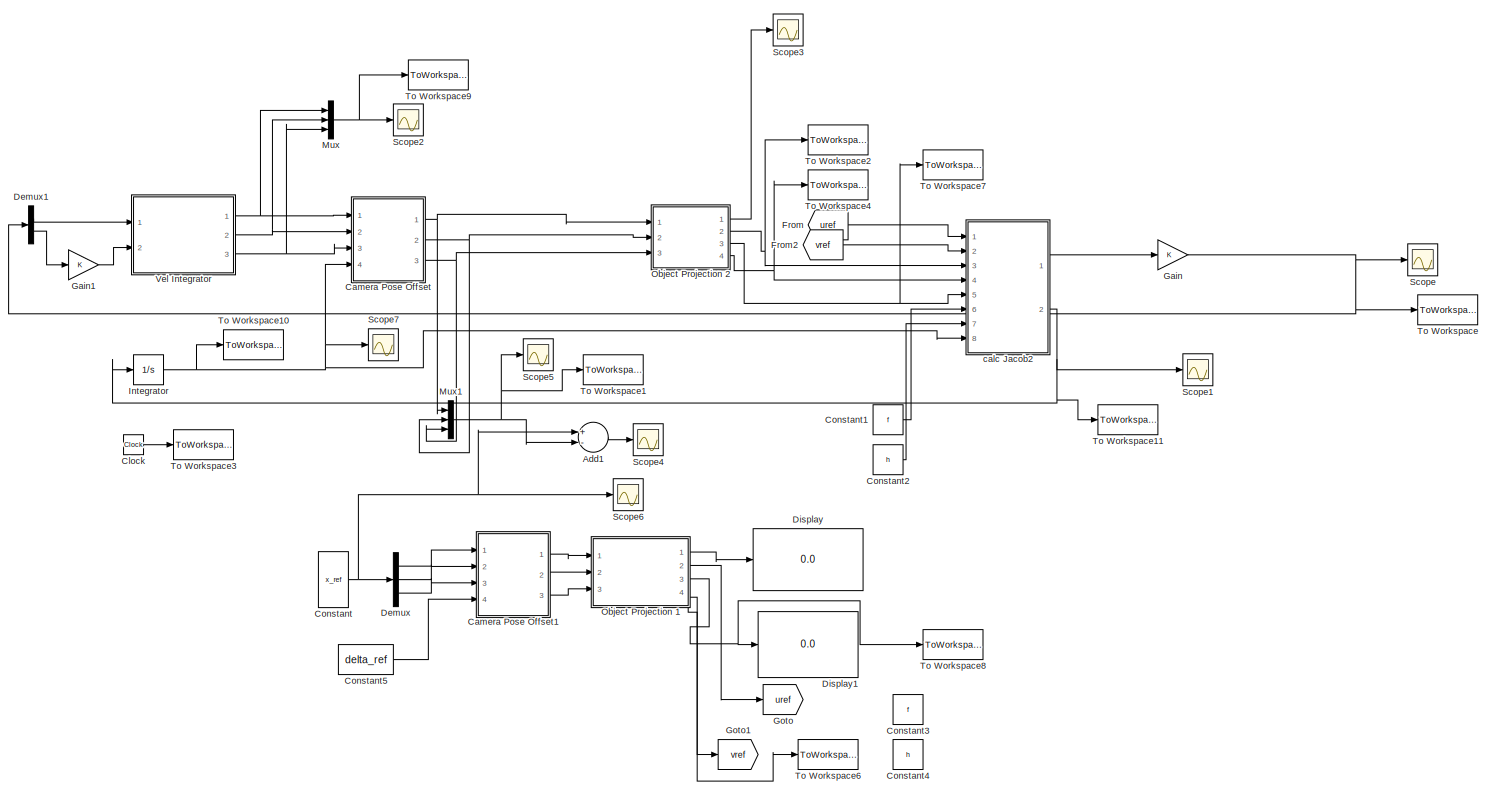
[diagram: root canvas - part 1/2, most of the canvas]
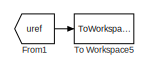
[diagram: root canvas - part 2/2, bottom center region]
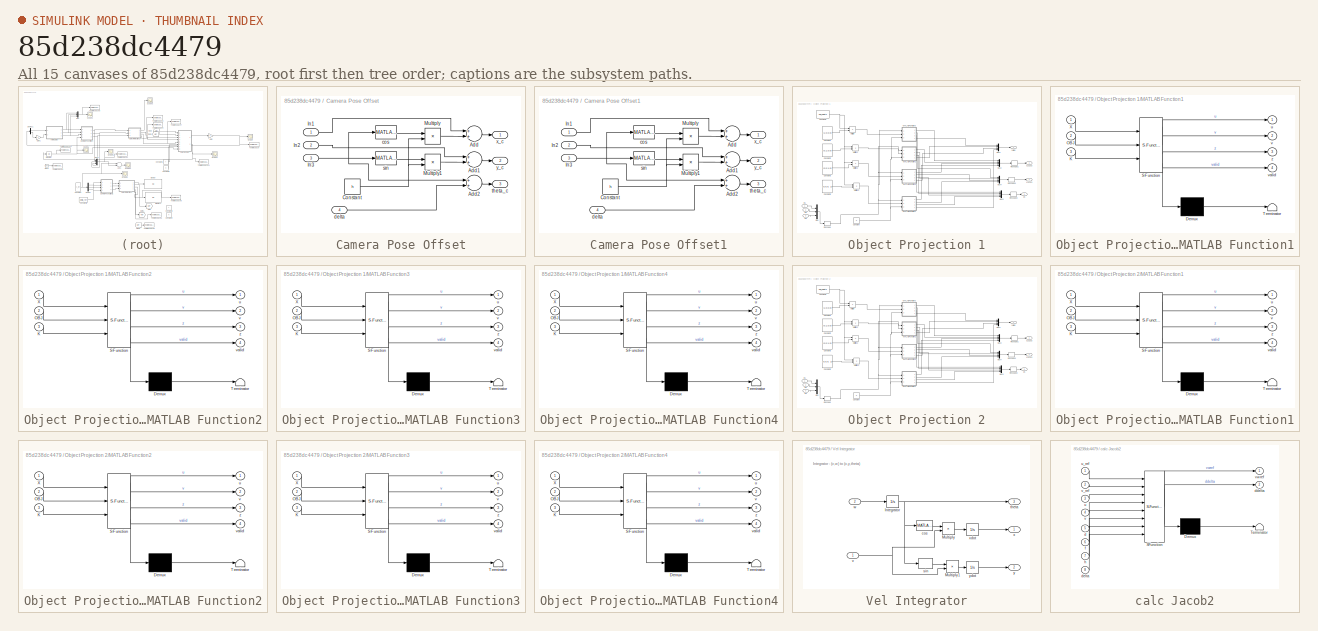
[diagram: thumbnail index - all 15 canvases of the model, root first then tree order]
MODEL slx_85d238dc4479
KIND model
CONFIG AbsTol = auto
CONFIG EnableMultiTasking = off
CONFIG FixedStep = ST
CONFIG MaxStep = auto
CONFIG MinStep = auto
CONFIG RelTol = 1e-3
CONFIG SampleTimeConstraint = Unconstrained
CONFIG Solver = FixedStepAuto
CONFIG SolverName = FixedStepAuto
CONFIG StartTime = 0.0
CONFIG StopTime = 10
BLOCK [Sum] Add1
  InputSameDT = off
  Inputs = +-
  OutDataTypeStr = Inherit: Inherit via internal rule
  Ports = [2, 1]
  SaturateOnIntegerOverflow = off
BLOCK [SubSystem] Camera Pose Offset
  Ports = [4, 3]
  RequestExecContextInheritance = off
BLOCK [Sum] Camera Pose Offset/Add
  InputSameDT = off
  OutDataTypeStr = Inherit: Inherit via internal rule
  Ports = [2, 1]
  SaturateOnIntegerOverflow = off
BLOCK [Sum] Camera Pose Offset/Add1
  InputSameDT = off
  OutDataTypeStr = Inherit: Inherit via internal rule
  Ports = [2, 1]
  SaturateOnIntegerOverflow = off
BLOCK [Sum] Camera Pose Offset/Add2
  InputSameDT = off
  OutDataTypeStr = Inherit: Inherit via internal rule
  Ports = [2, 1]
  SaturateOnIntegerOverflow = off
BLOCK [Constant] Camera Pose Offset/Constant
  Value = h
BLOCK [Inport] Camera Pose Offset/In1
  IconDisplay = Port number
BLOCK [Inport] Camera Pose Offset/In2
  IconDisplay = Port number
  Port = 2
BLOCK [Inport] Camera Pose Offset/In3
  IconDisplay = Port number
  Port = 3
BLOCK [Product] Camera Pose Offset/Multiply
  InputSameDT = off
  OutDataTypeStr = Inherit: Inherit via internal rule
  Ports = [2, 1]
  RndMeth = Floor
  SaturateOnIntegerOverflow = off
BLOCK [Product] Camera Pose Offset/Multiply1
  InputSameDT = off
  OutDataTypeStr = Inherit: Inherit via internal rule
  Ports = [2, 1]
  RndMeth = Floor
  SaturateOnIntegerOverflow = off
BLOCK [MATLABFcn] Camera Pose Offset/cos
  MATLABFcn = cos(u)
  Ports = [1, 1]
BLOCK [Inport] Camera Pose Offset/delta
  IconDisplay = Port number
  Port = 4
BLOCK [MATLABFcn] Camera Pose Offset/sin
  MATLABFcn = sin(u)
  Ports = [1, 1]
BLOCK [Outport] Camera Pose Offset/theta_c
  IconDisplay = Port number
  Port = 3
BLOCK [Outport] Camera Pose Offset/x_c
  IconDisplay = Port number
BLOCK [Outport] Camera Pose Offset/y_c
  IconDisplay = Port number
  Port = 2
BLOCK [SubSystem] Camera Pose Offset1
  Ports = [4, 3]
  RequestExecContextInheritance = off
BLOCK [Sum] Camera Pose Offset1/Add
  InputSameDT = off
  OutDataTypeStr = Inherit: Inherit via internal rule
  Ports = [2, 1]
  SaturateOnIntegerOverflow = off
BLOCK [Sum] Camera Pose Offset1/Add1
  InputSameDT = off
  OutDataTypeStr = Inherit: Inherit via internal rule
  Ports = [2, 1]
  SaturateOnIntegerOverflow = off
BLOCK [Sum] Camera Pose Offset1/Add2
  InputSameDT = off
  OutDataTypeStr = Inherit: Inherit via internal rule
  Ports = [2, 1]
  SaturateOnIntegerOverflow = off
BLOCK [Constant] Camera Pose Offset1/Constant
  Value = h
BLOCK [Inport] Camera Pose Offset1/In1
  IconDisplay = Port number
BLOCK [Inport] Camera Pose Offset1/In2
  IconDisplay = Port number
  Port = 2
BLOCK [Inport] Camera Pose Offset1/In3
  IconDisplay = Port number
  Port = 3
BLOCK [Product] Camera Pose Offset1/Multiply
  InputSameDT = off
  OutDataTypeStr = Inherit: Inherit via internal rule
  Ports = [2, 1]
  RndMeth = Floor
  SaturateOnIntegerOverflow = off
BLOCK [Product] Camera Pose Offset1/Multiply1
  InputSameDT = off
  OutDataTypeStr = Inherit: Inherit via internal rule
  Ports = [2, 1]
  RndMeth = Floor
  SaturateOnIntegerOverflow = off
BLOCK [MATLABFcn] Camera Pose Offset1/cos
  MATLABFcn = cos(u)
  Ports = [1, 1]
BLOCK [Inport] Camera Pose Offset1/delta
  IconDisplay = Port number
  Port = 4
BLOCK [MATLABFcn] Camera Pose Offset1/sin
  MATLABFcn = sin(u)
  Ports = [1, 1]
BLOCK [Outport] Camera Pose Offset1/theta_c
  IconDisplay = Port number
  Port = 3
BLOCK [Outport] Camera Pose Offset1/x_c
  IconDisplay = Port number
BLOCK [Outport] Camera Pose Offset1/y_c
  IconDisplay = Port number
  Port = 2
BLOCK [Clock] Clock
BLOCK [Constant] Constant
  Value = x_ref
  VectorParams1D = off
BLOCK [Constant] Constant1
  Value = f
BLOCK [Constant] Constant2
  Value = h
BLOCK [Constant] Constant3
  Value = f
BLOCK [Constant] Constant4
  Value = h
BLOCK [Constant] Constant5
  Value = delta_ref
BLOCK [Demux] Demux
  DisplayOption = bar
  Outputs = 3
  Ports = [1, 3]
BLOCK [Demux] Demux1
  DisplayOption = bar
  Outputs = 2
  Ports = [1, 2]
BLOCK [Display] Display
  Decimation = 1
  Ports = [1]
BLOCK [Display] Display1
  Decimation = 1
  Ports = [1]
BLOCK [From] From
  GotoTag = uref
BLOCK [From] From1
  GotoTag = uref
BLOCK [From] From2
  GotoTag = vref
BLOCK [Gain] Gain
  OutDataTypeStr = Inherit: Inherit via internal rule
  ParamDataTypeStr = Inherit: Inherit via internal rule
  SaturateOnIntegerOverflow = off
BLOCK [Gain] Gain1
  OutDataTypeStr = Inherit: Inherit via internal rule
  ParamDataTypeStr = Inherit: Inherit via internal rule
  SaturateOnIntegerOverflow = off
BLOCK [Goto] Goto
  GotoTag = uref
BLOCK [Goto] Goto1
  GotoTag = vref
BLOCK [Integrator] Integrator
  InitialCondition = delta_0
  Ports = [1, 1]
BLOCK [Mux] Mux
  DisplayOption = bar
  Inputs = 3
  Ports = [3, 1]
BLOCK [Mux] Mux1
  DisplayOption = bar
  Inputs = 3
  Ports = [3, 1]
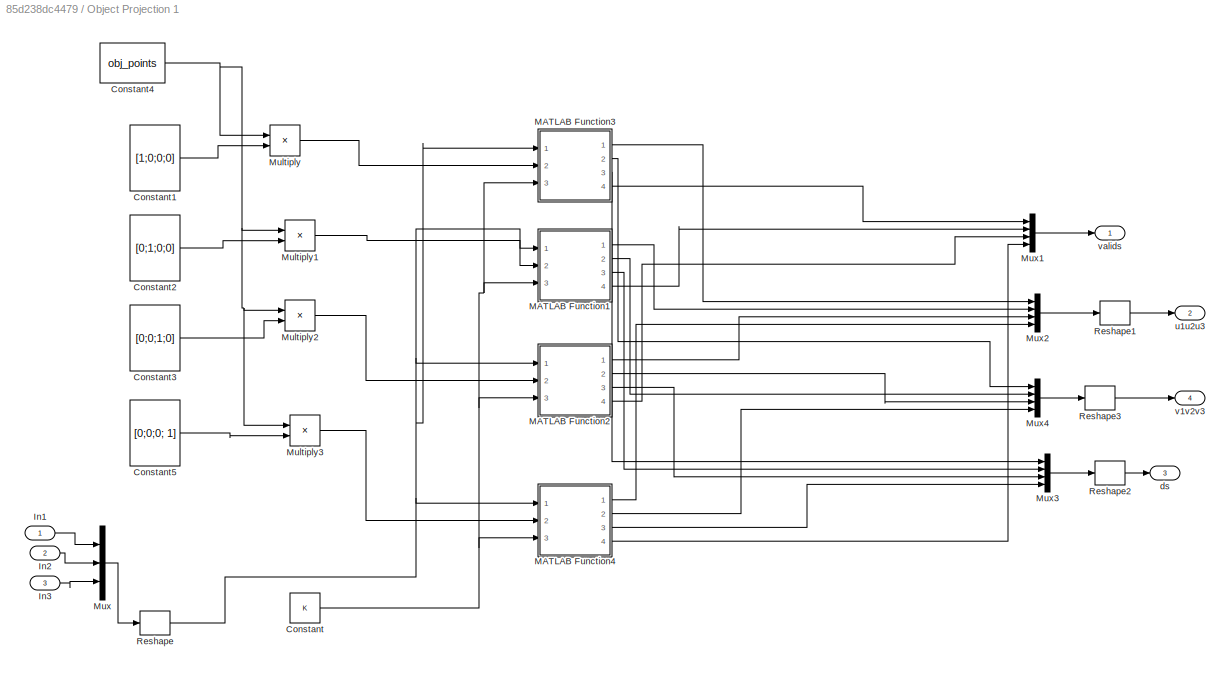
BLOCK [SubSystem] Object Projection 1
  Ports = [3, 4]
  RequestExecContextInheritance = off
BLOCK [Constant] Object Projection 1/Constant
  Value = K
  VectorParams1D = off
BLOCK [Constant] Object Projection 1/Constant1
  Value = [1;0;0;0]
  VectorParams1D = off
BLOCK [Constant] Object Projection 1/Constant2
  Value = [0;1;0;0]
  VectorParams1D = off
BLOCK [Constant] Object Projection 1/Constant3
  Value = [0;0;1;0]
  VectorParams1D = off
BLOCK [Constant] Object Projection 1/Constant4
  Value = obj_points
BLOCK [Constant] Object Projection 1/Constant5
  Value = [0;0;0; 1]
  VectorParams1D = off
BLOCK [Inport] Object Projection 1/In1
  IconDisplay = Port number
BLOCK [Inport] Object Projection 1/In2
  IconDisplay = Port number
  Port = 2
BLOCK [Inport] Object Projection 1/In3
  IconDisplay = Port number
  Port = 3
BLOCK [SubSystem] Object Projection 1/MATLAB Function1
  ErrorFcn = Stateflow.Translate.translate
  PermitHierarchicalResolution = ExplicitOnly
  Ports = [3, 4]
  RequestExecContextInheritance = off
  SFBlockType = MATLAB Function
  TreatAsAtomicUnit = on
BLOCK [Demux] Object Projection 1/MATLAB Function1/ Demux 
  Outputs = 1
  Ports = [1, 1]
BLOCK [S-Function] Object Projection 1/MATLAB Function1/ SFunction 
  EnableBusSupport = on
  FunctionName = sf_sfun
  PortCounts = [3 5]
  Ports = [3, 5]
  SFcnIsStateOwnerBlock = off
  SFunctionDeploymentMode = off
  Tag = Stateflow S-Function withdelta 1
BLOCK [Terminator] Object Projection 1/MATLAB Function1/ Terminator 
BLOCK [Inport] Object Projection 1/MATLAB Function1/K
  IconDisplay = Port number
  Port = 3
BLOCK [Inport] Object Projection 1/MATLAB Function1/OBJ
  IconDisplay = Port number
  Port = 2
BLOCK [Inport] Object Projection 1/MATLAB Function1/X
  IconDisplay = Port number
BLOCK [Outport] Object Projection 1/MATLAB Function1/u
  IconDisplay = Port number
BLOCK [Outport] Object Projection 1/MATLAB Function1/v
  IconDisplay = Port number
  Port = 2
BLOCK [Outport] Object Projection 1/MATLAB Function1/valid
  IconDisplay = Port number
  Port = 4
BLOCK [Outport] Object Projection 1/MATLAB Function1/z
  IconDisplay = Port number
  Port = 3
BLOCK [SubSystem] Object Projection 1/MATLAB Function2
  ErrorFcn = Stateflow.Translate.translate
  PermitHierarchicalResolution = ExplicitOnly
  Ports = [3, 4]
  RequestExecContextInheritance = off
  SFBlockType = MATLAB Function
  TreatAsAtomicUnit = on
BLOCK [Demux] Object Projection 1/MATLAB Function2/ Demux 
  Outputs = 1
  Ports = [1, 1]
BLOCK [S-Function] Object Projection 1/MATLAB Function2/ SFunction 
  EnableBusSupport = on
  FunctionName = sf_sfun
  PortCounts = [3 5]
  Ports = [3, 5]
  SFcnIsStateOwnerBlock = off
  SFunctionDeploymentMode = off
  Tag = Stateflow S-Function withdelta 2
BLOCK [Terminator] Object Projection 1/MATLAB Function2/ Terminator 
BLOCK [Inport] Object Projection 1/MATLAB Function2/K
  IconDisplay = Port number
  Port = 3
BLOCK [Inport] Object Projection 1/MATLAB Function2/OBJ
  IconDisplay = Port number
  Port = 2
BLOCK [Inport] Object Projection 1/MATLAB Function2/X
  IconDisplay = Port number
BLOCK [Outport] Object Projection 1/MATLAB Function2/u
  IconDisplay = Port number
BLOCK [Outport] Object Projection 1/MATLAB Function2/v
  IconDisplay = Port number
  Port = 2
BLOCK [Outport] Object Projection 1/MATLAB Function2/valid
  IconDisplay = Port number
  Port = 4
BLOCK [Outport] Object Projection 1/MATLAB Function2/z
  IconDisplay = Port number
  Port = 3
BLOCK [SubSystem] Object Projection 1/MATLAB Function3
  ErrorFcn = Stateflow.Translate.translate
  PermitHierarchicalResolution = ExplicitOnly
  Ports = [3, 4]
  RequestExecContextInheritance = off
  SFBlockType = MATLAB Function
  TreatAsAtomicUnit = on
BLOCK [Demux] Object Projection 1/MATLAB Function3/ Demux 
  Outputs = 1
  Ports = [1, 1]
BLOCK [S-Function] Object Projection 1/MATLAB Function3/ SFunction 
  EnableBusSupport = on
  FunctionName = sf_sfun
  PortCounts = [3 5]
  Ports = [3, 5]
  SFcnIsStateOwnerBlock = off
  SFunctionDeploymentMode = off
  Tag = Stateflow S-Function withdelta 7
BLOCK [Terminator] Object Projection 1/MATLAB Function3/ Terminator 
BLOCK [Inport] Object Projection 1/MATLAB Function3/K
  IconDisplay = Port number
  Port = 3
BLOCK [Inport] Object Projection 1/MATLAB Function3/OBJ
  IconDisplay = Port number
  Port = 2
BLOCK [Inport] Object Projection 1/MATLAB Function3/X
  IconDisplay = Port number
BLOCK [Outport] Object Projection 1/MATLAB Function3/u
  IconDisplay = Port number
BLOCK [Outport] Object Projection 1/MATLAB Function3/v
  IconDisplay = Port number
  Port = 2
BLOCK [Outport] Object Projection 1/MATLAB Function3/valid
  IconDisplay = Port number
  Port = 4
BLOCK [Outport] Object Projection 1/MATLAB Function3/z
  IconDisplay = Port number
  Port = 3
BLOCK [SubSystem] Object Projection 1/MATLAB Function4
  ErrorFcn = Stateflow.Translate.translate
  PermitHierarchicalResolution = ExplicitOnly
  Ports = [3, 4]
  RequestExecContextInheritance = off
  SFBlockType = MATLAB Function
  TreatAsAtomicUnit = on
BLOCK [Demux] Object Projection 1/MATLAB Function4/ Demux 
  Outputs = 1
  Ports = [1, 1]
BLOCK [S-Function] Object Projection 1/MATLAB Function4/ SFunction 
  EnableBusSupport = on
  FunctionName = sf_sfun
  PortCounts = [3 5]
  Ports = [3, 5]
  SFcnIsStateOwnerBlock = off
  SFunctionDeploymentMode = off
  Tag = Stateflow S-Function withdelta 9
BLOCK [Terminator] Object Projection 1/MATLAB Function4/ Terminator 
BLOCK [Inport] Object Projection 1/MATLAB Function4/K
  IconDisplay = Port number
  Port = 3
BLOCK [Inport] Object Projection 1/MATLAB Function4/OBJ
  IconDisplay = Port number
  Port = 2
BLOCK [Inport] Object Projection 1/MATLAB Function4/X
  IconDisplay = Port number
BLOCK [Outport] Object Projection 1/MATLAB Function4/u
  IconDisplay = Port number
BLOCK [Outport] Object Projection 1/MATLAB Function4/v
  IconDisplay = Port number
  Port = 2
BLOCK [Outport] Object Projection 1/MATLAB Function4/valid
  IconDisplay = Port number
  Port = 4
BLOCK [Outport] Object Projection 1/MATLAB Function4/z
  IconDisplay = Port number
  Port = 3
BLOCK [Product] Object Projection 1/Multiply
  InputSameDT = off
  Multiplication = Matrix(*)
  OutDataTypeStr = Inherit: Inherit via internal rule
  Ports = [2, 1]
  RndMeth = Floor
  SaturateOnIntegerOverflow = off
BLOCK [Product] Object Projection 1/Multiply1
  InputSameDT = off
  Multiplication = Matrix(*)
  OutDataTypeStr = Inherit: Inherit via internal rule
  Ports = [2, 1]
  RndMeth = Floor
  SaturateOnIntegerOverflow = off
BLOCK [Product] Object Projection 1/Multiply2
  InputSameDT = off
  Multiplication = Matrix(*)
  OutDataTypeStr = Inherit: Inherit via internal rule
  Ports = [2, 1]
  RndMeth = Floor
  SaturateOnIntegerOverflow = off
BLOCK [Product] Object Projection 1/Multiply3
  InputSameDT = off
  Multiplication = Matrix(*)
  OutDataTypeStr = Inherit: Inherit via internal rule
  Ports = [2, 1]
  RndMeth = Floor
  SaturateOnIntegerOverflow = off
BLOCK [Mux] Object Projection 1/Mux
  DisplayOption = bar
  Inputs = 3
  Ports = [3, 1]
BLOCK [Mux] Object Projection 1/Mux1
  DisplayOption = bar
  Ports = [4, 1]
BLOCK [Mux] Object Projection 1/Mux2
  DisplayOption = bar
  Ports = [4, 1]
BLOCK [Mux] Object Projection 1/Mux3
  DisplayOption = bar
  Ports = [4, 1]
BLOCK [Mux] Object Projection 1/Mux4
  DisplayOption = bar
  Ports = [4, 1]
BLOCK [Reshape] Object Projection 1/Reshape
  OutputDimensionality = Customize
  OutputDimensions = [3,1]
  Ports = [1, 1]
BLOCK [Reshape] Object Projection 1/Reshape1
  OutputDimensionality = Customize
  OutputDimensions = [4,1]
  Ports = [1, 1]
BLOCK [Reshape] Object Projection 1/Reshape2
  OutputDimensionality = Column vector (2-D)
  Ports = [1, 1]
BLOCK [Reshape] Object Projection 1/Reshape3
  OutputDimensionality = Customize
  OutputDimensions = [4,1]
  Ports = [1, 1]
BLOCK [Outport] Object Projection 1/ds
  IconDisplay = Port number
  Port = 3
BLOCK [Outport] Object Projection 1/u1u2u3
  IconDisplay = Port number
  Port = 2
BLOCK [Outport] Object Projection 1/v1v2v3
  IconDisplay = Port number
  Port = 4
BLOCK [Outport] Object Projection 1/valids
  IconDisplay = Port number
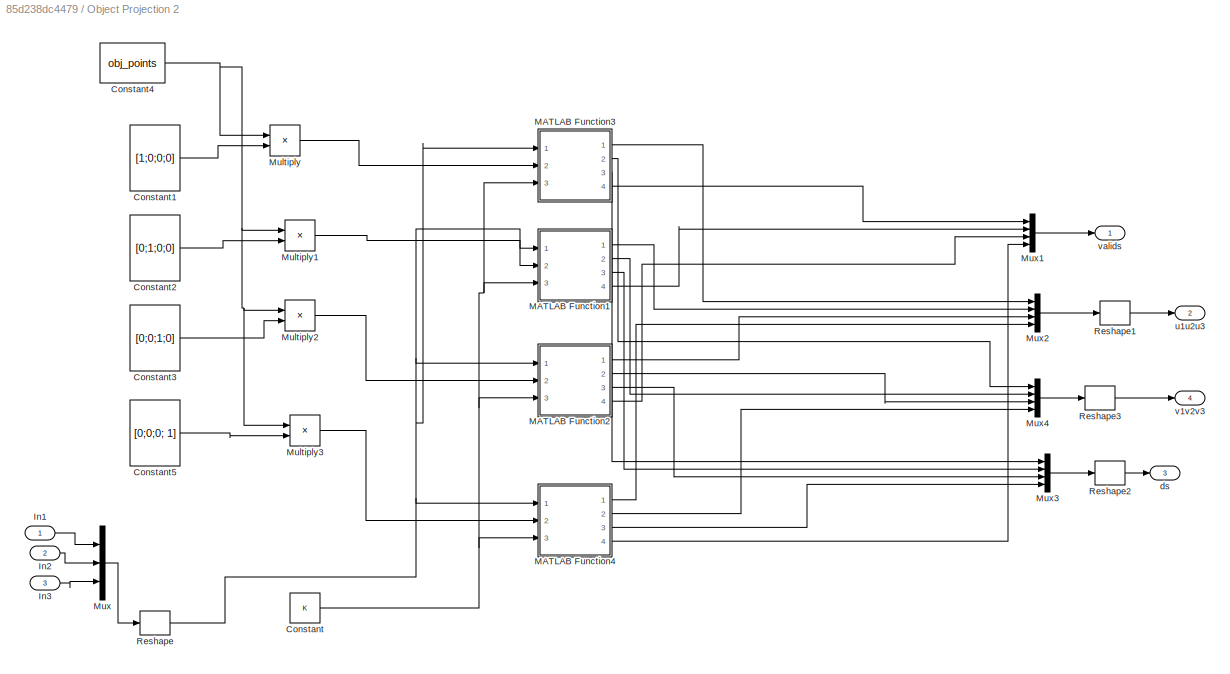
BLOCK [SubSystem] Object Projection 2
  Ports = [3, 4]
  RequestExecContextInheritance = off
BLOCK [Constant] Object Projection 2/Constant
  Value = K
  VectorParams1D = off
BLOCK [Constant] Object Projection 2/Constant1
  Value = [1;0;0;0]
  VectorParams1D = off
BLOCK [Constant] Object Projection 2/Constant2
  Value = [0;1;0;0]
  VectorParams1D = off
BLOCK [Constant] Object Projection 2/Constant3
  Value = [0;0;1;0]
  VectorParams1D = off
BLOCK [Constant] Object Projection 2/Constant4
  Value = obj_points
BLOCK [Constant] Object Projection 2/Constant5
  Value = [0;0;0; 1]
  VectorParams1D = off
BLOCK [Inport] Object Projection 2/In1
  IconDisplay = Port number
BLOCK [Inport] Object Projection 2/In2
  IconDisplay = Port number
  Port = 2
BLOCK [Inport] Object Projection 2/In3
  IconDisplay = Port number
  Port = 3
BLOCK [SubSystem] Object Projection 2/MATLAB Function1
  ErrorFcn = Stateflow.Translate.translate
  PermitHierarchicalResolution = ExplicitOnly
  Ports = [3, 4]
  RequestExecContextInheritance = off
  SFBlockType = MATLAB Function
  TreatAsAtomicUnit = on
BLOCK [Demux] Object Projection 2/MATLAB Function1/ Demux 
  Outputs = 1
  Ports = [1, 1]
BLOCK [S-Function] Object Projection 2/MATLAB Function1/ SFunction 
  EnableBusSupport = on
  FunctionName = sf_sfun
  PortCounts = [3 5]
  Ports = [3, 5]
  SFcnIsStateOwnerBlock = off
  SFunctionDeploymentMode = off
  Tag = Stateflow S-Function withdelta 4
BLOCK [Terminator] Object Projection 2/MATLAB Function1/ Terminator 
BLOCK [Inport] Object Projection 2/MATLAB Function1/K
  IconDisplay = Port number
  Port = 3
BLOCK [Inport] Object Projection 2/MATLAB Function1/OBJ
  IconDisplay = Port number
  Port = 2
BLOCK [Inport] Object Projection 2/MATLAB Function1/X
  IconDisplay = Port number
BLOCK [Outport] Object Projection 2/MATLAB Function1/u
  IconDisplay = Port number
BLOCK [Outport] Object Projection 2/MATLAB Function1/v
  IconDisplay = Port number
  Port = 2
BLOCK [Outport] Object Projection 2/MATLAB Function1/valid
  IconDisplay = Port number
  Port = 4
BLOCK [Outport] Object Projection 2/MATLAB Function1/z
  IconDisplay = Port number
  Port = 3
BLOCK [SubSystem] Object Projection 2/MATLAB Function2
  ErrorFcn = Stateflow.Translate.translate
  PermitHierarchicalResolution = ExplicitOnly
  Ports = [3, 4]
  RequestExecContextInheritance = off
  SFBlockType = MATLAB Function
  TreatAsAtomicUnit = on
BLOCK [Demux] Object Projection 2/MATLAB Function2/ Demux 
  Outputs = 1
  Ports = [1, 1]
BLOCK [S-Function] Object Projection 2/MATLAB Function2/ SFunction 
  EnableBusSupport = on
  FunctionName = sf_sfun
  PortCounts = [3 5]
  Ports = [3, 5]
  SFcnIsStateOwnerBlock = off
  SFunctionDeploymentMode = off
  Tag = Stateflow S-Function withdelta 5
BLOCK [Terminator] Object Projection 2/MATLAB Function2/ Terminator 
BLOCK [Inport] Object Projection 2/MATLAB Function2/K
  IconDisplay = Port number
  Port = 3
BLOCK [Inport] Object Projection 2/MATLAB Function2/OBJ
  IconDisplay = Port number
  Port = 2
BLOCK [Inport] Object Projection 2/MATLAB Function2/X
  IconDisplay = Port number
BLOCK [Outport] Object Projection 2/MATLAB Function2/u
  IconDisplay = Port number
BLOCK [Outport] Object Projection 2/MATLAB Function2/v
  IconDisplay = Port number
  Port = 2
BLOCK [Outport] Object Projection 2/MATLAB Function2/valid
  IconDisplay = Port number
  Port = 4
BLOCK [Outport] Object Projection 2/MATLAB Function2/z
  IconDisplay = Port number
  Port = 3
BLOCK [SubSystem] Object Projection 2/MATLAB Function3
  ErrorFcn = Stateflow.Translate.translate
  PermitHierarchicalResolution = ExplicitOnly
  Ports = [3, 4]
  RequestExecContextInheritance = off
  SFBlockType = MATLAB Function
  TreatAsAtomicUnit = on
BLOCK [Demux] Object Projection 2/MATLAB Function3/ Demux 
  Outputs = 1
  Ports = [1, 1]
BLOCK [S-Function] Object Projection 2/MATLAB Function3/ SFunction 
  EnableBusSupport = on
  FunctionName = sf_sfun
  PortCounts = [3 5]
  Ports = [3, 5]
  SFcnIsStateOwnerBlock = off
  SFunctionDeploymentMode = off
  Tag = Stateflow S-Function withdelta 6
BLOCK [Terminator] Object Projection 2/MATLAB Function3/ Terminator 
BLOCK [Inport] Object Projection 2/MATLAB Function3/K
  IconDisplay = Port number
  Port = 3
BLOCK [Inport] Object Projection 2/MATLAB Function3/OBJ
  IconDisplay = Port number
  Port = 2
BLOCK [Inport] Object Projection 2/MATLAB Function3/X
  IconDisplay = Port number
BLOCK [Outport] Object Projection 2/MATLAB Function3/u
  IconDisplay = Port number
BLOCK [Outport] Object Projection 2/MATLAB Function3/v
  IconDisplay = Port number
  Port = 2
BLOCK [Outport] Object Projection 2/MATLAB Function3/valid
  IconDisplay = Port number
  Port = 4
BLOCK [Outport] Object Projection 2/MATLAB Function3/z
  IconDisplay = Port number
  Port = 3
BLOCK [SubSystem] Object Projection 2/MATLAB Function4
  ErrorFcn = Stateflow.Translate.translate
  PermitHierarchicalResolution = ExplicitOnly
  Ports = [3, 4]
  RequestExecContextInheritance = off
  SFBlockType = MATLAB Function
  TreatAsAtomicUnit = on
BLOCK [Demux] Object Projection 2/MATLAB Function4/ Demux 
  Outputs = 1
  Ports = [1, 1]
BLOCK [S-Function] Object Projection 2/MATLAB Function4/ SFunction 
  EnableBusSupport = on
  FunctionName = sf_sfun
  PortCounts = [3 5]
  Ports = [3, 5]
  SFcnIsStateOwnerBlock = off
  SFunctionDeploymentMode = off
  Tag = Stateflow S-Function withdelta 8
BLOCK [Terminator] Object Projection 2/MATLAB Function4/ Terminator 
BLOCK [Inport] Object Projection 2/MATLAB Function4/K
  IconDisplay = Port number
  Port = 3
BLOCK [Inport] Object Projection 2/MATLAB Function4/OBJ
  IconDisplay = Port number
  Port = 2
BLOCK [Inport] Object Projection 2/MATLAB Function4/X
  IconDisplay = Port number
BLOCK [Outport] Object Projection 2/MATLAB Function4/u
  IconDisplay = Port number
BLOCK [Outport] Object Projection 2/MATLAB Function4/v
  IconDisplay = Port number
  Port = 2
BLOCK [Outport] Object Projection 2/MATLAB Function4/valid
  IconDisplay = Port number
  Port = 4
BLOCK [Outport] Object Projection 2/MATLAB Function4/z
  IconDisplay = Port number
  Port = 3
BLOCK [Product] Object Projection 2/Multiply
  InputSameDT = off
  Multiplication = Matrix(*)
  OutDataTypeStr = Inherit: Inherit via internal rule
  Ports = [2, 1]
  RndMeth = Floor
  SaturateOnIntegerOverflow = off
BLOCK [Product] Object Projection 2/Multiply1
  InputSameDT = off
  Multiplication = Matrix(*)
  OutDataTypeStr = Inherit: Inherit via internal rule
  Ports = [2, 1]
  RndMeth = Floor
  SaturateOnIntegerOverflow = off
BLOCK [Product] Object Projection 2/Multiply2
  InputSameDT = off
  Multiplication = Matrix(*)
  OutDataTypeStr = Inherit: Inherit via internal rule
  Ports = [2, 1]
  RndMeth = Floor
  SaturateOnIntegerOverflow = off
BLOCK [Product] Object Projection 2/Multiply3
  InputSameDT = off
  Multiplication = Matrix(*)
  OutDataTypeStr = Inherit: Inherit via internal rule
  Ports = [2, 1]
  RndMeth = Floor
  SaturateOnIntegerOverflow = off
BLOCK [Mux] Object Projection 2/Mux
  DisplayOption = bar
  Inputs = 3
  Ports = [3, 1]
BLOCK [Mux] Object Projection 2/Mux1
  DisplayOption = bar
  Ports = [4, 1]
BLOCK [Mux] Object Projection 2/Mux2
  DisplayOption = bar
  Ports = [4, 1]
BLOCK [Mux] Object Projection 2/Mux3
  DisplayOption = bar
  Ports = [4, 1]
BLOCK [Mux] Object Projection 2/Mux4
  DisplayOption = bar
  Ports = [4, 1]
BLOCK [Reshape] Object Projection 2/Reshape
  OutputDimensionality = Customize
  OutputDimensions = [3,1]
  Ports = [1, 1]
BLOCK [Reshape] Object Projection 2/Reshape1
  OutputDimensionality = Customize
  OutputDimensions = [4,1]
  Ports = [1, 1]
BLOCK [Reshape] Object Projection 2/Reshape2
  OutputDimensionality = Column vector (2-D)
  Ports = [1, 1]
BLOCK [Reshape] Object Projection 2/Reshape3
  OutputDimensionality = Customize
  OutputDimensions = [4,1]
  Ports = [1, 1]
BLOCK [Outport] Object Projection 2/ds
  IconDisplay = Port number
  Port = 3
BLOCK [Outport] Object Projection 2/u1u2u3
  IconDisplay = Port number
  Port = 2
BLOCK [Outport] Object Projection 2/v1v2v3
  IconDisplay = Port number
  Port = 4
BLOCK [Outport] Object Projection 2/valids
  IconDisplay = Port number
BLOCK [Scope] Scope
  Floating = off
  NumInputPorts = 1
  Ports = [1]
  ScopeSpecificationString = Simulink.scopes.TimeScopeBlockCfg('CurrentConfiguration', extmgr.ConfigurationSet(extmgr.Configuration('Core','General UI',true),extmgr.Configuration('Core','Source UI',true),extmgr.Configuration('Sources','WiredSimulink',true),extmgr.Configuration('Visuals','Time Domain',true,'SerializedDisplays',{struct('MinYLimReal','-605.40629','MaxYLimReal','879.57803','YLabelReal','','MinYLimMag',' 0.00000',...<+1349ch>
BLOCK [Scope] Scope1
  Floating = off
  NumInputPorts = 1
  Ports = [1]
  ScopeSpecificationString = Simulink.scopes.TimeScopeBlockCfg('CurrentConfiguration', extmgr.ConfigurationSet(extmgr.Configuration('Core','General UI',true),extmgr.Configuration('Core','Source UI',true),extmgr.Configuration('Sources','WiredSimulink',true,'DataLoggingVariableName','ScopeData1'),extmgr.Configuration('Visuals','Time Domain',true,'SerializedDisplays',{struct('MinYLimReal','-0.18023','MaxYLimReal','0.02002','YLab...<+1422ch>
BLOCK [Scope] Scope2
  Floating = off
  NumInputPorts = 1
  Ports = [1]
  ScopeSpecificationString = Simulink.scopes.TimeScopeBlockCfg('CurrentConfiguration', extmgr.ConfigurationSet(extmgr.Configuration('Core','General UI',true),extmgr.Configuration('Core','Source UI',true),extmgr.Configuration('Sources','WiredSimulink',true,'DataLoggingVariableName','ScopeData2'),extmgr.Configuration('Visuals','Time Domain',true,'SerializedDisplays',{struct('MinYLimReal','-17.20749','MaxYLimReal','111.7951','YL...<+1417ch>
BLOCK [Scope] Scope3
  Floating = off
  NumInputPorts = 1
  Ports = [1]
  ScopeSpecificationString = Simulink.scopes.TimeScopeBlockCfg('CurrentConfiguration', extmgr.ConfigurationSet(extmgr.Configuration('Core','General UI',true),extmgr.Configuration('Core','Source UI',true),extmgr.Configuration('Sources','WiredSimulink',true,'DataLoggingVariableName','ScopeData3'),extmgr.Configuration('Visuals','Time Domain',true,'SerializedDisplays',{struct('MinYLimReal','0.9','MaxYLimReal','1.1','YLabelReal','...<+1426ch>
BLOCK [Scope] Scope4
  Floating = off
  NumInputPorts = 1
  Ports = [1]
  ScopeSpecificationString = Simulink.scopes.TimeScopeBlockCfg('CurrentConfiguration', extmgr.ConfigurationSet(extmgr.Configuration('Core','General UI',true),extmgr.Configuration('Core','Source UI',true),extmgr.Configuration('Sources','WiredSimulink',true,'DataLoggingVariableName','ScopeData4'),extmgr.Configuration('Visuals','Time Domain',true,'SerializedDisplays',{struct('MinYLimReal','-0.34375','MaxYLimReal','1.09375','YLab...<+1383ch>
BLOCK [Scope] Scope5
  Floating = off
  NumInputPorts = 1
  Ports = [1]
  ScopeSpecificationString = Simulink.scopes.TimeScopeBlockCfg('CurrentConfiguration', extmgr.ConfigurationSet(extmgr.Configuration('Core','General UI',true),extmgr.Configuration('Core','Source UI',true),extmgr.Configuration('Sources','WiredSimulink',true,'DataLoggingVariableName','ScopeData5'),extmgr.Configuration('Visuals','Time Domain',true,'SerializedDisplays',{struct('MinYLimReal','-1.09375','MaxYLimReal','0.34375','YLab...<+1425ch>
BLOCK [Scope] Scope6
  Floating = off
  NumInputPorts = 1
  Ports = [1]
  ScopeSpecificationString = Simulink.scopes.TimeScopeBlockCfg('CurrentConfiguration', extmgr.ConfigurationSet(extmgr.Configuration('Core','General UI',true),extmgr.Configuration('Core','Source UI',true),extmgr.Configuration('Sources','WiredSimulink',true,'DataLoggingVariableName','ScopeData6'),extmgr.Configuration('Visuals','Time Domain',true,'SerializedDisplays',{struct('MinYLimReal','-1.00000','MaxYLimReal','1.00000','YLab...<+1395ch>
BLOCK [Scope] Scope7
  Floating = off
  NumInputPorts = 1
  Ports = [1]
  ScopeSpecificationString = Simulink.scopes.TimeScopeBlockCfg('CurrentConfiguration', extmgr.ConfigurationSet(extmgr.Configuration('Core','General UI',true),extmgr.Configuration('Core','Source UI',true),extmgr.Configuration('Sources','WiredSimulink',true,'DataLoggingVariableName','ScopeData2'),extmgr.Configuration('Visuals','Time Domain',true,'SerializedDisplays',{struct('MinYLimReal','-37.18658','MaxYLimReal','4.13184','YLa...<+1373ch>
BLOCK [ToWorkspace] To Workspace
  FixptAsFi = on
  MaxDataPoints = inf
  Ports = [1]
  SampleTime = -1
  Save2DSignal = 3-D array (concatenate along third dimension)
  SaveFormat = Timeseries
  VariableName = vw
BLOCK [ToWorkspace] To Workspace1
  FixptAsFi = on
  MaxDataPoints = inf
  Ports = [1]
  SampleTime = -1
  Save2DSignal = 3-D array (concatenate along third dimension)
  SaveFormat = Timeseries
  VariableName = xc
BLOCK [ToWorkspace] To Workspace10
  FixptAsFi = on
  MaxDataPoints = inf
  Ports = [1]
  SampleTime = -1
  Save2DSignal = 3-D array (concatenate along third dimension)
  SaveFormat = Timeseries
  VariableName = delta
BLOCK [ToWorkspace] To Workspace11
  FixptAsFi = on
  MaxDataPoints = inf
  Ports = [1]
  SampleTime = -1
  Save2DSignal = 3-D array (concatenate along third dimension)
  SaveFormat = Timeseries
  VariableName = ddelta
BLOCK [ToWorkspace] To Workspace2
  FixptAsFi = on
  MaxDataPoints = inf
  Ports = [1]
  SampleTime = -1
  Save2DSignal = 3-D array (concatenate along third dimension)
  SaveFormat = Timeseries
  VariableName = us
BLOCK [ToWorkspace] To Workspace3
  FixptAsFi = on
  MaxDataPoints = inf
  Ports = [1]
  SampleTime = -1
  Save2DSignal = 3-D array (concatenate along third dimension)
  SaveFormat = Timeseries
  VariableName = time
BLOCK [ToWorkspace] To Workspace4
  FixptAsFi = on
  MaxDataPoints = inf
  Ports = [1]
  SampleTime = -1
  Save2DSignal = 3-D array (concatenate along third dimension)
  SaveFormat = Timeseries
  VariableName = vs
BLOCK [ToWorkspace] To Workspace5
  FixptAsFi = on
  MaxDataPoints = inf
  Ports = [1]
  SampleTime = -1
  Save2DSignal = 3-D array (concatenate along third dimension)
  SaveFormat = Timeseries
  VariableName = uref
BLOCK [ToWorkspace] To Workspace6
  FixptAsFi = on
  MaxDataPoints = inf
  Ports = [1]
  SampleTime = -1
  Save2DSignal = 3-D array (concatenate along third dimension)
  SaveFormat = Timeseries
  VariableName = vref
BLOCK [ToWorkspace] To Workspace7
  FixptAsFi = on
  MaxDataPoints = inf
  Ports = [1]
  SampleTime = -1
  Save2DSignal = 3-D array (concatenate along third dimension)
  SaveFormat = Timeseries
  VariableName = ds
BLOCK [ToWorkspace] To Workspace8
  FixptAsFi = on
  MaxDataPoints = inf
  Ports = [1]
  SampleTime = -1
  Save2DSignal = 3-D array (concatenate along third dimension)
  SaveFormat = Timeseries
  VariableName = dref
BLOCK [ToWorkspace] To Workspace9
  FixptAsFi = on
  MaxDataPoints = inf
  Ports = [1]
  SampleTime = -1
  Save2DSignal = 3-D array (concatenate along third dimension)
  SaveFormat = Timeseries
  VariableName = xcar
BLOCK [SubSystem] Vel Integrator
  Ports = [2, 3]
  RequestExecContextInheritance = off
BLOCK [Integrator] Vel Integrator/Integrator
  InitialCondition = theta_0
  Ports = [1, 1]
BLOCK [Product] Vel Integrator/Multiply
  InputSameDT = off
  OutDataTypeStr = Inherit: Inherit via internal rule
  Ports = [2, 1]
  RndMeth = Floor
  SaturateOnIntegerOverflow = off
BLOCK [Product] Vel Integrator/Multiply1
  InputSameDT = off
  OutDataTypeStr = Inherit: Inherit via internal rule
  Ports = [2, 1]
  RndMeth = Floor
  SaturateOnIntegerOverflow = off
BLOCK [MATLABFcn] Vel Integrator/cos
  MATLABFcn = cos(u)
  Ports = [1, 1]
BLOCK [MATLABFcn] Vel Integrator/sin
  MATLABFcn = sin(u)
  Ports = [1, 1]
BLOCK [Outport] Vel Integrator/theta
  IconDisplay = Port number
  Port = 3
BLOCK [Inport] Vel Integrator/v
  IconDisplay = Port number
BLOCK [Inport] Vel Integrator/w
  IconDisplay = Port number
  Port = 2
BLOCK [Outport] Vel Integrator/x
  IconDisplay = Port number
BLOCK [Integrator] Vel Integrator/xdot
  InitialCondition = x_0
  Ports = [1, 1]
BLOCK [Outport] Vel Integrator/y
  IconDisplay = Port number
  Port = 2
BLOCK [Integrator] Vel Integrator/ydot
  InitialCondition = y_0
  Ports = [1, 1]
BLOCK [SubSystem] calc Jacob2
  ErrorFcn = Stateflow.Translate.translate
  PermitHierarchicalResolution = ExplicitOnly
  Ports = [8, 2]
  RequestExecContextInheritance = off
  SFBlockType = MATLAB Function
  TreatAsAtomicUnit = on
BLOCK [Demux] calc Jacob2/ Demux 
  Outputs = 1
  Ports = [1, 1]
BLOCK [S-Function] calc Jacob2/ SFunction 
  EnableBusSupport = on
  FunctionName = sf_sfun
  PortCounts = [8 3]
  Ports = [8, 3]
  SFcnIsStateOwnerBlock = off
  SFunctionDeploymentMode = off
  Tag = Stateflow S-Function withdelta 3
BLOCK [Terminator] calc Jacob2/ Terminator 
BLOCK [Inport] calc Jacob2/d
  IconDisplay = Port number
  Port = 5
BLOCK [Outport] calc Jacob2/ddelta
  IconDisplay = Port number
  Port = 2
BLOCK [Inport] calc Jacob2/delta
  IconDisplay = Port number
  Port = 8
BLOCK [Inport] calc Jacob2/f
  IconDisplay = Port number
  Port = 6
BLOCK [Inport] calc Jacob2/h
  IconDisplay = Port number
  Port = 7
BLOCK [Inport] calc Jacob2/u
  IconDisplay = Port number
  Port = 3
BLOCK [Inport] calc Jacob2/u_ref
  IconDisplay = Port number
BLOCK [Inport] calc Jacob2/v
  IconDisplay = Port number
  Port = 4
BLOCK [Inport] calc Jacob2/v_ref
  IconDisplay = Port number
  Port = 2
BLOCK [Outport] calc Jacob2/vwref
  IconDisplay = Port number
ANNOTATION Vel Integrator: Integrator : (v,w) to (x,y,theta)
LINE Add1:1 -> Scope4:1
LINE Camera Pose Offset/Add1:1 -> Camera Pose Offset/y_c:1
LINE Camera Pose Offset/Add2:1 -> Camera Pose Offset/theta_c:1
LINE Camera Pose Offset/Add:1 -> Camera Pose Offset/x_c:1
NET Camera Pose Offset/Constant:1 -> Camera Pose Offset/Multiply1:2, Camera Pose Offset/Multiply:2
LINE Camera Pose Offset/In1:1 -> Camera Pose Offset/Add:1
LINE Camera Pose Offset/In2:1 -> Camera Pose Offset/Add1:1
NET Camera Pose Offset/In3:1 -> Camera Pose Offset/Add2:1, Camera Pose Offset/cos:1, Camera Pose Offset/sin:1
LINE Camera Pose Offset/Multiply1:1 -> Camera Pose Offset/Add1:2
LINE Camera Pose Offset/Multiply:1 -> Camera Pose Offset/Add:2
LINE Camera Pose Offset/cos:1 -> Camera Pose Offset/Multiply:1
LINE Camera Pose Offset/delta:1 -> Camera Pose Offset/Add2:2
LINE Camera Pose Offset/sin:1 -> Camera Pose Offset/Multiply1:1
LINE Camera Pose Offset1/Add1:1 -> Camera Pose Offset1/y_c:1
LINE Camera Pose Offset1/Add2:1 -> Camera Pose Offset1/theta_c:1
LINE Camera Pose Offset1/Add:1 -> Camera Pose Offset1/x_c:1
NET Camera Pose Offset1/Constant:1 -> Camera Pose Offset1/Multiply1:2, Camera Pose Offset1/Multiply:2
LINE Camera Pose Offset1/In1:1 -> Camera Pose Offset1/Add:1
LINE Camera Pose Offset1/In2:1 -> Camera Pose Offset1/Add1:1
NET Camera Pose Offset1/In3:1 -> Camera Pose Offset1/Add2:1, Camera Pose Offset1/cos:1, Camera Pose Offset1/sin:1
LINE Camera Pose Offset1/Multiply1:1 -> Camera Pose Offset1/Add1:2
LINE Camera Pose Offset1/Multiply:1 -> Camera Pose Offset1/Add:2
LINE Camera Pose Offset1/cos:1 -> Camera Pose Offset1/Multiply:1
LINE Camera Pose Offset1/delta:1 -> Camera Pose Offset1/Add2:2
LINE Camera Pose Offset1/sin:1 -> Camera Pose Offset1/Multiply1:1
LINE Camera Pose Offset1:1 -> Object Projection 1:1
LINE Camera Pose Offset1:2 -> Object Projection 1:2
LINE Camera Pose Offset1:3 -> Object Projection 1:3
NET Camera Pose Offset:1 -> Mux1:1, Object Projection 2:1
NET Camera Pose Offset:2 -> Mux1:2, Object Projection 2:2
NET Camera Pose Offset:3 -> Mux1:3, Object Projection 2:3
LINE Clock:1 -> To Workspace3:1
LINE Constant1:1 -> calc Jacob2:6
LINE Constant2:1 -> calc Jacob2:7
LINE Constant5:1 -> Camera Pose Offset1:4
NET Constant:1 -> Add1:1, Demux:1, Scope6:1
LINE Demux1:1 -> Vel Integrator:1
LINE Demux1:2 -> Gain1:1
LINE Demux:1 -> Camera Pose Offset1:1
LINE Demux:2 -> Camera Pose Offset1:2
LINE Demux:3 -> Camera Pose Offset1:3
LINE From1:1 -> To Workspace5:1
LINE From2:1 -> calc Jacob2:2
LINE From:1 -> calc Jacob2:1
LINE Gain1:1 -> Vel Integrator:2
NET Gain:1 -> Demux1:1, Scope:1, To Workspace:1
NET Integrator:1 -> Camera Pose Offset:4, Scope7:1, To Workspace10:1, calc Jacob2:8
NET Mux1:1 -> Add1:2, Scope5:1, To Workspace1:1
NET Mux:1 -> Scope2:1, To Workspace9:1
LINE Object Projection 1/Constant1:1 -> Object Projection 1/Multiply:2
LINE Object Projection 1/Constant2:1 -> Object Projection 1/Multiply1:2
LINE Object Projection 1/Constant3:1 -> Object Projection 1/Multiply2:2
NET Object Projection 1/Constant4:1 -> Object Projection 1/Multiply1:1, Object Projection 1/Multiply2:1, Object Projection 1/Multiply3:1, Object Projection 1/Multiply:1
LINE Object Projection 1/Constant5:1 -> Object Projection 1/Multiply3:2
NET Object Projection 1/Constant:1 -> Object Projection 1/MATLAB Function1:3, Object Projection 1/MATLAB Function2:3, Object Projection 1/MATLAB Function3:3, Object Projection 1/MATLAB Function4:3
LINE Object Projection 1/In1:1 -> Object Projection 1/Mux:1
LINE Object Projection 1/In2:1 -> Object Projection 1/Mux:2
LINE Object Projection 1/In3:1 -> Object Projection 1/Mux:3
LINE Object Projection 1/MATLAB Function1:1 -> Object Projection 1/Mux2:2
LINE Object Projection 1/MATLAB Function1:2 -> Object Projection 1/Mux4:2
LINE Object Projection 1/MATLAB Function1:3 -> Object Projection 1/Mux3:2
LINE Object Projection 1/MATLAB Function1:4 -> Object Projection 1/Mux1:2
LINE Object Projection 1/MATLAB Function2:1 -> Object Projection 1/Mux2:3
LINE Object Projection 1/MATLAB Function2:2 -> Object Projection 1/Mux4:3
LINE Object Projection 1/MATLAB Function2:3 -> Object Projection 1/Mux3:3
LINE Object Projection 1/MATLAB Function2:4 -> Object Projection 1/Mux1:3
LINE Object Projection 1/MATLAB Function3:1 -> Object Projection 1/Mux2:1
LINE Object Projection 1/MATLAB Function3:2 -> Object Projection 1/Mux4:1
LINE Object Projection 1/MATLAB Function3:3 -> Object Projection 1/Mux3:1
LINE Object Projection 1/MATLAB Function3:4 -> Object Projection 1/Mux1:1
LINE Object Projection 1/MATLAB Function4:1 -> Object Projection 1/Mux2:4
LINE Object Projection 1/MATLAB Function4:2 -> Object Projection 1/Mux4:4
LINE Object Projection 1/MATLAB Function4:3 -> Object Projection 1/Mux3:4
LINE Object Projection 1/MATLAB Function4:4 -> Object Projection 1/Mux1:4
LINE Object Projection 1/Multiply1:1 -> Object Projection 1/MATLAB Function1:2
LINE Object Projection 1/Multiply2:1 -> Object Projection 1/MATLAB Function2:2
LINE Object Projection 1/Multiply3:1 -> Object Projection 1/MATLAB Function4:2
LINE Object Projection 1/Multiply:1 -> Object Projection 1/MATLAB Function3:2
LINE Object Projection 1/Mux1:1 -> Object Projection 1/valids:1
LINE Object Projection 1/Mux2:1 -> Object Projection 1/Reshape1:1
LINE Object Projection 1/Mux3:1 -> Object Projection 1/Reshape2:1
LINE Object Projection 1/Mux4:1 -> Object Projection 1/Reshape3:1
LINE Object Projection 1/Mux:1 -> Object Projection 1/Reshape:1
LINE Object Projection 1/Reshape1:1 -> Object Projection 1/u1u2u3:1
LINE Object Projection 1/Reshape2:1 -> Object Projection 1/ds:1
LINE Object Projection 1/Reshape3:1 -> Object Projection 1/v1v2v3:1
NET Object Projection 1/Reshape:1 -> Object Projection 1/MATLAB Function1:1, Object Projection 1/MATLAB Function2:1, Object Projection 1/MATLAB Function3:1, Object Projection 1/MATLAB Function4:1
LINE Object Projection 1:1 -> Display:1
LINE Object Projection 1:2 -> Goto:1
NET Object Projection 1:3 -> Display1:1, To Workspace8:1
NET Object Projection 1:4 -> Goto1:1, To Workspace6:1
LINE Object Projection 2/Constant1:1 -> Object Projection 2/Multiply:2
LINE Object Projection 2/Constant2:1 -> Object Projection 2/Multiply1:2
LINE Object Projection 2/Constant3:1 -> Object Projection 2/Multiply2:2
NET Object Projection 2/Constant4:1 -> Object Projection 2/Multiply1:1, Object Projection 2/Multiply2:1, Object Projection 2/Multiply3:1, Object Projection 2/Multiply:1
LINE Object Projection 2/Constant5:1 -> Object Projection 2/Multiply3:2
NET Object Projection 2/Constant:1 -> Object Projection 2/MATLAB Function1:3, Object Projection 2/MATLAB Function2:3, Object Projection 2/MATLAB Function3:3, Object Projection 2/MATLAB Function4:3
LINE Object Projection 2/In1:1 -> Object Projection 2/Mux:1
LINE Object Projection 2/In2:1 -> Object Projection 2/Mux:2
LINE Object Projection 2/In3:1 -> Object Projection 2/Mux:3
LINE Object Projection 2/MATLAB Function1:1 -> Object Projection 2/Mux2:2
LINE Object Projection 2/MATLAB Function1:2 -> Object Projection 2/Mux4:2
LINE Object Projection 2/MATLAB Function1:3 -> Object Projection 2/Mux3:2
LINE Object Projection 2/MATLAB Function1:4 -> Object Projection 2/Mux1:2
LINE Object Projection 2/MATLAB Function2:1 -> Object Projection 2/Mux2:3
LINE Object Projection 2/MATLAB Function2:2 -> Object Projection 2/Mux4:3
LINE Object Projection 2/MATLAB Function2:3 -> Object Projection 2/Mux3:3
LINE Object Projection 2/MATLAB Function2:4 -> Object Projection 2/Mux1:3
LINE Object Projection 2/MATLAB Function3:1 -> Object Projection 2/Mux2:1
LINE Object Projection 2/MATLAB Function3:2 -> Object Projection 2/Mux4:1
LINE Object Projection 2/MATLAB Function3:3 -> Object Projection 2/Mux3:1
LINE Object Projection 2/MATLAB Function3:4 -> Object Projection 2/Mux1:1
LINE Object Projection 2/MATLAB Function4:1 -> Object Projection 2/Mux2:4
LINE Object Projection 2/MATLAB Function4:2 -> Object Projection 2/Mux4:4
LINE Object Projection 2/MATLAB Function4:3 -> Object Projection 2/Mux3:4
LINE Object Projection 2/MATLAB Function4:4 -> Object Projection 2/Mux1:4
LINE Object Projection 2/Multiply1:1 -> Object Projection 2/MATLAB Function1:2
LINE Object Projection 2/Multiply2:1 -> Object Projection 2/MATLAB Function2:2
LINE Object Projection 2/Multiply3:1 -> Object Projection 2/MATLAB Function4:2
LINE Object Projection 2/Multiply:1 -> Object Projection 2/MATLAB Function3:2
LINE Object Projection 2/Mux1:1 -> Object Projection 2/valids:1
LINE Object Projection 2/Mux2:1 -> Object Projection 2/Reshape1:1
LINE Object Projection 2/Mux3:1 -> Object Projection 2/Reshape2:1
LINE Object Projection 2/Mux4:1 -> Object Projection 2/Reshape3:1
LINE Object Projection 2/Mux:1 -> Object Projection 2/Reshape:1
LINE Object Projection 2/Reshape1:1 -> Object Projection 2/u1u2u3:1
LINE Object Projection 2/Reshape2:1 -> Object Projection 2/ds:1
LINE Object Projection 2/Reshape3:1 -> Object Projection 2/v1v2v3:1
NET Object Projection 2/Reshape:1 -> Object Projection 2/MATLAB Function1:1, Object Projection 2/MATLAB Function2:1, Object Projection 2/MATLAB Function3:1, Object Projection 2/MATLAB Function4:1
LINE Object Projection 2:1 -> Scope3:1
NET Object Projection 2:2 -> To Workspace2:1, calc Jacob2:3
NET Object Projection 2:3 -> To Workspace7:1, calc Jacob2:5
NET Object Projection 2:4 -> To Workspace4:1, calc Jacob2:4
NET Vel Integrator/Integrator:1 -> Vel Integrator/cos:1, Vel Integrator/sin:1, Vel Integrator/theta:1
LINE Vel Integrator/Multiply1:1 -> Vel Integrator/ydot:1
LINE Vel Integrator/Multiply:1 -> Vel Integrator/xdot:1
LINE Vel Integrator/cos:1 -> Vel Integrator/Multiply:1
LINE Vel Integrator/sin:1 -> Vel Integrator/Multiply1:1
NET Vel Integrator/v:1 -> Vel Integrator/Multiply1:2, Vel Integrator/Multiply:2
LINE Vel Integrator/w:1 -> Vel Integrator/Integrator:1
LINE Vel Integrator/xdot:1 -> Vel Integrator/x:1
LINE Vel Integrator/ydot:1 -> Vel Integrator/y:1
NET Vel Integrator:1 -> Camera Pose Offset:1, Mux:1
NET Vel Integrator:2 -> Camera Pose Offset:2, Mux:2
NET Vel Integrator:3 -> Camera Pose Offset:3, Mux:3
LINE calc Jacob2:1 -> Gain:1
NET calc Jacob2:2 -> Integrator:1, Scope1:1, To Workspace11:1
note: NET lines group one-source signal fan-out (src -> all destinations, sorted); 1:1 wires keep LINE
CHART Object Projection
1/MATLAB Function1 states=1 transitions=1
  STATE_LABEL 'eML_blk_kernel()'
  STATE_LABEL 'SCRIPT:\nfunction [u,v,z,valid]=projection(X,OBJ,K)\n%%%%%%%\n% X = [xc,yc,thetac] \n% OBJ = [xo,yo,zo]\n%%%%%%\n% assert size(X,1) == 3\n% assert size(X,2) == 1\n% assert size(K,1) == 3\n% assert size(K,2) == 3\n% assert size(OBJ,1) == 3\n% assert size(OBJ,2) == 1\n\n%%%%%\n% conversion\n% todo\n%%%%%\n\n\n\n%%%%%\n% Rotate to camera \n%%%%%\nCta = X(3);\nRinv = [cos(Cta),sin(Cta);-sin(Cta),cos(Cta)];\nX_c = Rinv*(OBJ(1:...<+235ch>'  <repeated x8 — deduplicated; at blocks: Object Projection>
CHART Object Projection
1/MATLAB Function2 states=1 transitions=1
  STATE_LABEL 'eML_blk_kernel()'
CHART calc Jacob2 states=1 transitions=1
  STATE_LABEL 'eML_blk_kernel()'
  STATE_LABEL 'SCRIPT:\nfunction [vwref,ddelta]  = fcn(u_ref,v_ref,u,v,d,f,h,delta)\nuref = reshape(u_ref,4,1);\nvref = reshape(v_ref,4,1);\n\nsd = sin(delta);\ncd = cos(delta);\nu = reshape(u,4,1);\nv = reshape(v,4,1);\nd = reshape(d,4,1);\n\n%% camera control\ndJacob = f-u.*u/f;\ndgain = 3;\nddelta = dgain*pinv(dJacob)*(uref-u);\n\n\n%% car control\nuJacob = [u./d*cd+f./d*sd -1./d*h*f*cd-u./d*h*sd+f-u.*u/f];% i am not sure\n\ninp...<+169ch>'
CHART Object Projection
2/MATLAB Function1 states=1 transitions=1
  STATE_LABEL 'eML_blk_kernel()'
CHART Object Projection
2/MATLAB Function2 states=1 transitions=1
  STATE_LABEL 'eML_blk_kernel()'
CHART Object Projection
2/MATLAB Function3 states=1 transitions=1
  STATE_LABEL 'eML_blk_kernel()'
CHART Object Projection
1/MATLAB Function3 states=1 transitions=1
  STATE_LABEL 'eML_blk_kernel()'
CHART Object Projection
2/MATLAB Function4 states=1 transitions=1
  STATE_LABEL 'eML_blk_kernel()'
CHART Object Projection
1/MATLAB Function4 states=1 transitions=1
  STATE_LABEL 'eML_blk_kernel()'
